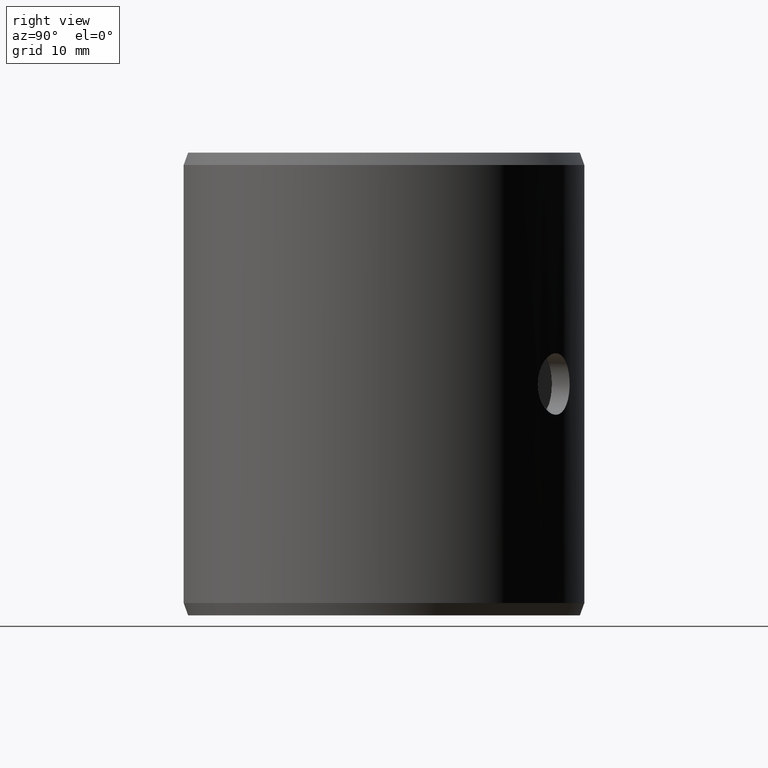
[diagram: clean part render]
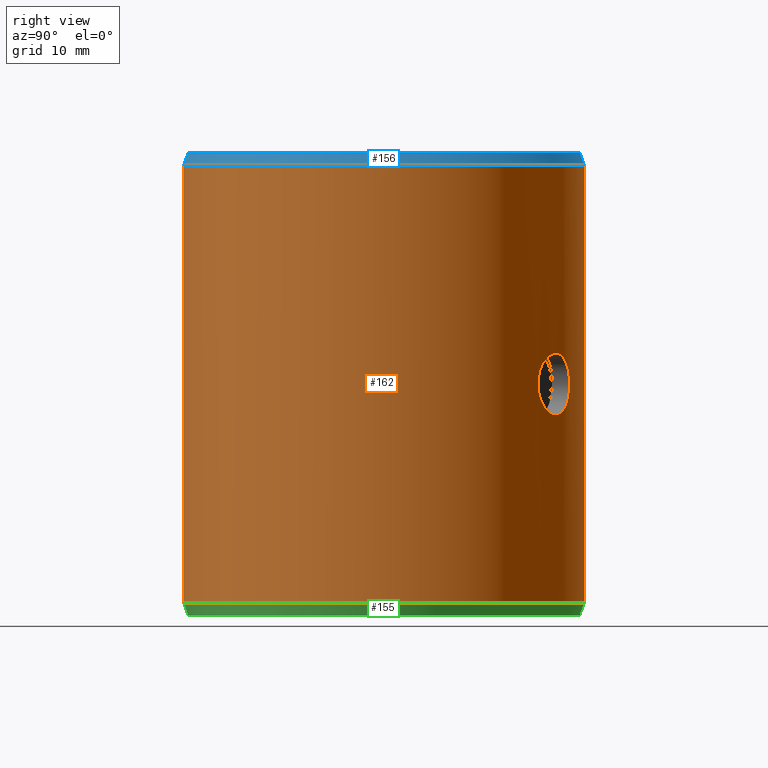
[diagram: same view with three faces highlighted in distinct colors, each labeled with its STEP entity id]
A machine part, right view with three faces highlighted in distinct colors.
Their STEP definitions:

[orange] entity #162 — the highlighted cylindrical surface (partial cylindrical patch) has radius 19.5 mm, axis along (-0, 0, -1).
#162=ADVANCED_FACE('',(#185,#186),#187,.T.);
#185=FACE_OUTER_BOUND('',#211,.T.);
#186=FACE_BOUND('',#212,.T.);
#187=CYLINDRICAL_SURFACE('',#213,0.0195);
#211=EDGE_LOOP('',(#289,#290,#291,#292));
#212=EDGE_LOOP('',(#293));
#213=AXIS2_PLACEMENT_3D('',#294,#295,#296);
#289=ORIENTED_EDGE('',*,*,#314,.T.);
#290=ORIENTED_EDGE('',*,*,#323,.F.);
#291=ORIENTED_EDGE('',*,*,#309,.F.);
#292=ORIENTED_EDGE('',*,*,#324,.T.);
#293=ORIENTED_EDGE('',*,*,#327,.T.);
#294=CARTESIAN_POINT('',(-6.93889390390723E-018,-6.93889390390723E-018,0.0));
#295=DIRECTION('',(6.12323399573677E-017,0.0,-1.0));
#296=DIRECTION('',(-1.0,0.0,-6.12323399573677E-017));
#309=EDGE_CURVE('',#341,#342,#343,.T.);
#314=EDGE_CURVE('',#351,#349,#352,.T.);
#323=EDGE_CURVE('',#342,#349,#365,.T.);
#324=EDGE_CURVE('',#341,#351,#366,.T.);
#327=EDGE_CURVE('',#370,#370,#371,.T.);
#341=VERTEX_POINT('',#389);
#342=VERTEX_POINT('',#390);
#343=CIRCLE('',#391,0.0195);
#349=VERTEX_POINT('',#399);
#351=VERTEX_POINT('',#402);
#352=CIRCLE('',#403,0.0195);
#365=LINE('',#422,#423);
#366=LINE('',#424,#425);
#370=VERTEX_POINT('',#493);
#371=B_SPLINE_CURVE_WITH_KNOTS('',3,(#494,#495,#496,#497,#498,#499,#500,#501,#502,#503,#504,#505,#506,#507,#508,#509,#510,#511,#512,#513,#514,#515,#516,#517,#518,#519,#520,#521,#522,#523,#524,#525,#526,#527,#528,#529,#530,#531,#532,#533,#534,#535,#536,#537,#538,#539,#540,#541,#542,#543,#544,#545,#546,#547,#548,#549,#550,#551,#552,#553,#554,#555,#556,#557,#558,#559),.UNSPECIFIED.,.T.,.F.,(2,2,2,2,2,2,2,2,2,2,2,2,2,2,2,2,2,2,2,2,2,2,2,2,2,2,2,2,2,2,2,2,2,2,2),(-0.000587009433090822,0.0,0.000587009433090825,0.00117401886618165,0.00176102829927247,0.0023480377323633,0.00293504716545412,0.00352205659854495,0.00410906603163577,0.0046960754647266,0.00528308489781742,0.00587009433090825,0.00645710376399907,0.0070441131970899,0.00763112263018072,0.00821813206327155,0.00880514149636237,0.00939215092945319,0.00997916036254402,0.0105661697956348,0.0111531792287257,0.0117401886618165,0.0123271980949073,0.0129142075279981,0.013501216961089,0.0140882263941798,0.0146752358272706,0.0152622452603614,0.0158492546934522,0.0164362641265431,0.0170232735596339,0.0176102829927247,0.0181972924258155,0.0187843018589064,0.0193713112919972),.UNSPECIFIED.);
#389=CARTESIAN_POINT('',(0.000340321925527022,0.0194970300555497,0.0012));
#390=CARTESIAN_POINT('',(-6.93889390390723E-018,0.0195,0.0012));
#391=AXIS2_PLACEMENT_3D('',#573,#574,#575);
#399=CARTESIAN_POINT('',(-1.04083408558608E-017,0.0195,0.0438));
#402=CARTESIAN_POINT('',(0.000340321925527019,0.0194970300555497,0.0438));
#403=AXIS2_PLACEMENT_3D('',#582,#583,#584);
#422=CARTESIAN_POINT('',(-6.93889390390723E-018,0.0195,0.0012));
#423=VECTOR('',#597,1.0);
#424=CARTESIAN_POINT('',(0.000340321925527022,0.0194970300555497,0.0012));
#425=VECTOR('',#598,1.0);
#493=CARTESIAN_POINT('',(0.0149706557798313,-0.0124951776906855,0.0225));
#494=CARTESIAN_POINT('',(0.0149706557798313,-0.0124951776906855,0.0223014895659618));
#495=CARTESIAN_POINT('',(0.0149706557798313,-0.0124951776906855,0.0226985104340382));
#496=CARTESIAN_POINT('',(0.0149833314837837,-0.0124800348621713,0.0228936437700711));
#497=CARTESIAN_POINT('',(0.0150326641338093,-0.0124205676824387,0.0232774510972444));
#498=CARTESIAN_POINT('',(0.015069928540972,-0.0123755018770107,0.02346813604296));
#499=CARTESIAN_POINT('',(0.015166074696659,-0.0122574863342064,0.0238312887161006));
#500=CARTESIAN_POINT('',(0.0152245146701845,-0.0121850809388324,0.0240034806495446));
#501=CARTESIAN_POINT('',(0.015360702543225,-0.0120129455924481,0.0243293599681815));
#502=CARTESIAN_POINT('',(0.0154390290355291,-0.0119124178858036,0.0244834240533812));
#503=CARTESIAN_POINT('',(0.0156072645188539,-0.0116911338921615,0.0247596877692386));
#504=CARTESIAN_POINT('',(0.0156978269100683,-0.011569584921165,0.0248837646567694));
#505=CARTESIAN_POINT('',(0.0158907951376737,-0.0113030834217483,0.0251030880563401));
#506=CARTESIAN_POINT('',(0.0159914974718561,-0.0111604065941269,0.0251961039180374));
#507=CARTESIAN_POINT('',(0.016195616982516,-0.0108620742629689,0.0253458216467392));
#508=CARTESIAN_POINT('',(0.0163005398649087,-0.0107042024200055,0.0254035789307381));
#509=CARTESIAN_POINT('',(0.0165100406699082,-0.0103781552510023,0.02548076098473));
#510=CARTESIAN_POINT('',(0.0166129382585461,-0.0102126728562142,0.0254998882738148));
#511=CARTESIAN_POINT('',(0.01681483217084,-0.00987673141868303,0.0255001107595029));
#512=CARTESIAN_POINT('',(0.0169147753900004,-0.00970450713726847,0.0254805675821432));
#513=CARTESIAN_POINT('',(0.0171031344905516,-0.00936855783296243,0.025403911397553));
#514=CARTESIAN_POINT('',(0.0171922568560058,-0.00920377453121156,0.0253471972604755));
#515=CARTESIAN_POINT('',(0.0173611442878784,-0.00888109398890274,0.0251967181194372));
#516=CARTESIAN_POINT('',(0.0174403175020868,-0.00872421240254107,0.0251029136505754));
#517=CARTESIAN_POINT('',(0.0175836883760394,-0.00843151586089861,0.0248859401861775));
#518=CARTESIAN_POINT('',(0.0176489449722354,-0.0082936433831248,0.024761712522632));
#519=CARTESIAN_POINT('',(0.0177667341550724,-0.00803821725648331,0.0244822821200508));
#520=CARTESIAN_POINT('',(0.0178176424063448,-0.00792424227145673,0.0243311056782011));
#521=CARTESIAN_POINT('',(0.0179055338940902,-0.00772359064585286,0.0240065508513514));
#522=CARTESIAN_POINT('',(0.0179428032438487,-0.00763620301640861,0.0238310434821884));
#523=CARTESIAN_POINT('',(0.018001824736235,-0.00749600499740697,0.0234680944792541));
#524=CARTESIAN_POINT('',(0.0180237570118666,-0.00744282885363643,0.0232811109014696));
#525=CARTESIAN_POINT('',(0.0180533565520529,-0.00737074184677381,0.022896112521996));
#526=CARTESIAN_POINT('',(0.0180608552504371,-0.0073522450740322,0.0226970847531542));
#527=CARTESIAN_POINT('',(0.0180609130371271,-0.00735210311891799,0.022305234114312));
#528=CARTESIAN_POINT('',(0.018053714599517,-0.00736986449831897,0.0221103003725879));
#529=CARTESIAN_POINT('',(0.0180241636808527,-0.00744184366741361,0.0217224674647947));
#530=CARTESIAN_POINT('',(0.0180019946278781,-0.00749559133569008,0.0215334163612371));
#531=CARTESIAN_POINT('',(0.0179434140107477,-0.00763476218966424,0.0211722524523485));
#532=CARTESIAN_POINT('',(0.0179064998831356,-0.0077213611819968,0.0209974080678264));
#533=CARTESIAN_POINT('',(0.0178180415900439,-0.00792335474802498,0.0206699825400046));
#534=CARTESIAN_POINT('',(0.0177671431365666,-0.00803728413291257,0.0205190798731835));
#535=CARTESIAN_POINT('',(0.0176507898398454,-0.00828968814238652,0.0202422797843854));
#536=CARTESIAN_POINT('',(0.0175845757069147,-0.00842967054428598,0.0201155890456822));
#537=CARTESIAN_POINT('',(0.0174409841885843,-0.00872288477574771,0.0198979109294579));
#538=CARTESIAN_POINT('',(0.0173632697235621,-0.00887693617793337,0.0198055793777291));
#539=CARTESIAN_POINT('',(0.0171945373644908,-0.00919951173820663,0.0196544413507142));
#540=CARTESIAN_POINT('',(0.0171039289675329,-0.00936709294986622,0.0195965813647711));
#541=CARTESIAN_POINT('',(0.0169162943783774,-0.00970184523489855,0.0195198832385157));
#542=CARTESIAN_POINT('',(0.016818153681989,-0.00987112055732314,0.0195001668977406));
#543=CARTESIAN_POINT('',(0.0166139555630856,-0.0102110623774427,0.0194998352011615));
#544=CARTESIAN_POINT('',(0.0165109143728976,-0.0103767338284968,0.0195191360554897));
#545=CARTESIAN_POINT('',(0.0163032930854969,-0.0106999781749786,0.019595191627637));
#546=CARTESIAN_POINT('',(0.016197546027642,-0.0108592155021141,0.0196529320013771));
#547=CARTESIAN_POINT('',(0.0159922422067443,-0.0111593569635424,0.0198031834490454));
#548=CARTESIAN_POINT('',(0.01589262047771,-0.0113005059750439,0.0198951769328295));
#549=CARTESIAN_POINT('',(0.0157005771620229,-0.0115658418508942,0.0201127778379214));
#550=CARTESIAN_POINT('',(0.015608118199153,-0.0116899945902435,0.0202390767847351));
#551=CARTESIAN_POINT('',(0.0154398558385624,-0.0119113466460792,0.0205150534828849));
#552=CARTESIAN_POINT('',(0.0153629258767852,-0.0120101121813316,0.02066582571613));
#553=CARTESIAN_POINT('',(0.0152254008070771,-0.0121839836001047,0.0209939044414007));
#554=CARTESIAN_POINT('',(0.0151665116740981,-0.0122569436600335,0.0211674967259357));
#555=CARTESIAN_POINT('',(0.0150707765766145,-0.0123744671652382,0.0215282307236351));
#556=CARTESIAN_POINT('',(0.0150334126213185,-0.0124196635642654,0.0217177284131086));
#557=CARTESIAN_POINT('',(0.0149833341967204,-0.012480033431115,0.0221053473568906));
#558=CARTESIAN_POINT('',(0.0149706557798313,-0.0124951776906855,0.0223014895659618));
#559=CARTESIAN_POINT('',(0.0149706557798313,-0.0124951776906855,0.0226985104340382));
#573=CARTESIAN_POINT('',(-6.93889390390723E-018,-6.93889390390723E-018,0.0012));
#574=DIRECTION('',(6.12323399573677E-017,0.0,-1.0));
#575=DIRECTION('',(-1.0,0.0,-6.12323399573677E-017));
#582=CARTESIAN_POINT('',(-1.04083408558608E-017,-6.93889390390723E-018,0.0438));
#583=DIRECTION('',(6.12323399573677E-017,0.0,-1.0));
#584=DIRECTION('',(-1.0,0.0,-6.12323399573677E-017));
#597=DIRECTION('',(-8.14424167125262E-017,0.0,1.0));
#598=DIRECTION('',(-8.14393386199467E-017,3.52714473659723E-019,1.0));

[blue] entity #156 — the highlighted conical surface has half-angle 20 deg.
#156=ADVANCED_FACE('',(#172),#173,.T.);
#172=FACE_OUTER_BOUND('',#198,.T.);
#173=CONICAL_SURFACE('',#199,0.0195,0.349065850398871);
#198=EDGE_LOOP('',(#238,#239,#240,#241));
#199=AXIS2_PLACEMENT_3D('',#242,#243,#244);
#238=ORIENTED_EDGE('',*,*,#312,.T.);
#239=ORIENTED_EDGE('',*,*,#313,.F.);
#240=ORIENTED_EDGE('',*,*,#314,.F.);
#241=ORIENTED_EDGE('',*,*,#315,.T.);
#242=CARTESIAN_POINT('',(-1.04083408558608E-017,-6.93889390390723E-018,0.0438));
#243=DIRECTION('',(6.12323399573677E-017,-0.0,-1.0));
#244=DIRECTION('',(-1.0,0.0,-6.12323399573677E-017));
#312=EDGE_CURVE('',#346,#347,#348,.T.);
#313=EDGE_CURVE('',#349,#347,#350,.T.);
#314=EDGE_CURVE('',#351,#349,#352,.T.);
#315=EDGE_CURVE('',#351,#346,#353,.T.);
#346=VERTEX_POINT('',#396);
#347=VERTEX_POINT('',#397);
#348=CIRCLE('',#398,0.0190632357188806);
#349=VERTEX_POINT('',#399);
#350=LINE('',#400,#401);
#351=VERTEX_POINT('',#402);
#352=CIRCLE('',#403,0.0195);
#353=LINE('',#404,#405);
#396=CARTESIAN_POINT('',(0.000332699337775635,0.0190603322957457,0.045));
#397=CARTESIAN_POINT('',(-1.04083408558608E-017,0.0190632357188806,0.045));
#398=AXIS2_PLACEMENT_3D('',#578,#579,#580);
#399=CARTESIAN_POINT('',(-1.04083408558608E-017,0.0195,0.0438));
#400=CARTESIAN_POINT('',(-1.04083408558608E-017,0.0195,0.0438));
#401=VECTOR('',#581,1.0);
#402=CARTESIAN_POINT('',(0.000340321925527019,0.0194970300555497,0.0438));
#403=AXIS2_PLACEMENT_3D('',#582,#583,#584);
#404=CARTESIAN_POINT('',(0.000340321925527019,0.0194970300555497,0.0438));
#405=VECTOR('',#585,1.0);
#578=CARTESIAN_POINT('',(-1.04083408558608E-017,-6.93889390390723E-018,0.045));
#579=DIRECTION('',(6.12323399573677E-017,0.0,-1.0));
#580=DIRECTION('',(-1.0,0.0,-6.12323399573677E-017));
#581=DIRECTION('',(0.0,-0.342020143325671,0.939692620785908));
#582=CARTESIAN_POINT('',(-1.04083408558608E-017,-6.93889390390723E-018,0.0438));
#583=DIRECTION('',(6.12323399573677E-017,0.0,-1.0));
#584=DIRECTION('',(-1.0,0.0,-6.12323399573677E-017));
#585=DIRECTION('',(-0.00596907455105759,-0.341968052001231,0.939692620785908));

[green] entity #155 — the highlighted conical surface has half-angle 20 deg.
#155=ADVANCED_FACE('',(#170),#171,.T.);
#170=FACE_OUTER_BOUND('',#196,.T.);
#171=CONICAL_SURFACE('',#197,0.0190632357188806,0.349065850398866);
#196=EDGE_LOOP('',(#231,#232,#233,#234));
#197=AXIS2_PLACEMENT_3D('',#235,#236,#237);
#231=ORIENTED_EDGE('',*,*,#309,.T.);
#232=ORIENTED_EDGE('',*,*,#310,.F.);
#233=ORIENTED_EDGE('',*,*,#306,.F.);
#234=ORIENTED_EDGE('',*,*,#311,.T.);
#235=CARTESIAN_POINT('',(-6.93889390390723E-018,-6.93889390390723E-018,6.50521303491303E-019));
#236=DIRECTION('',(-6.12323399573677E-017,0.0,1.0));
#237=DIRECTION('',(1.0,0.0,6.12323399573677E-017));
#306=EDGE_CURVE('',#336,#337,#338,.T.);
#309=EDGE_CURVE('',#341,#342,#343,.T.);
#310=EDGE_CURVE('',#337,#342,#344,.T.);
#311=EDGE_CURVE('',#336,#341,#345,.T.);
#336=VERTEX_POINT('',#382);
#337=VERTEX_POINT('',#383);
#338=CIRCLE('',#384,0.0190632357188806);
#341=VERTEX_POINT('',#389);
#342=VERTEX_POINT('',#390);
#343=CIRCLE('',#391,0.0195);
#344=LINE('',#392,#393);
#345=LINE('',#394,#395);
#382=CARTESIAN_POINT('',(0.000332699337775638,0.0190603322957457,6.70893262445572E-019));
#383=CARTESIAN_POINT('',(-6.93889390390723E-018,0.0190632357188806,6.50521303491303E-019));
#384=AXIS2_PLACEMENT_3D('',#568,#569,#570);
#389=CARTESIAN_POINT('',(0.000340321925527022,0.0194970300555497,0.0012));
#390=CARTESIAN_POINT('',(-6.93889390390723E-018,0.0195,0.0012));
#391=AXIS2_PLACEMENT_3D('',#573,#574,#575);
#392=CARTESIAN_POINT('',(-6.93889390390723E-018,0.0190632357188806,6.50521303491303E-019));
#393=VECTOR('',#576,1.0);
#394=CARTESIAN_POINT('',(0.000332699337775638,0.0190603322957457,6.70893262445572E-019));
#395=VECTOR('',#577,1.0);
#568=CARTESIAN_POINT('',(-6.93889390390723E-018,-6.93889390390723E-018,6.50521303491303E-019));
#569=DIRECTION('',(6.12323399573677E-017,0.0,-1.0));
#570=DIRECTION('',(-1.0,0.0,-6.12323399573677E-017));
#573=CARTESIAN_POINT('',(-6.93889390390723E-018,-6.93889390390723E-018,0.0012));
#574=DIRECTION('',(6.12323399573677E-017,0.0,-1.0));
#575=DIRECTION('',(-1.0,0.0,-6.12323399573677E-017));
#576=DIRECTION('',(0.0,0.342020143325667,0.939692620785909));
#577=DIRECTION('',(0.00596907455105751,0.341968052001227,0.939692620785909));